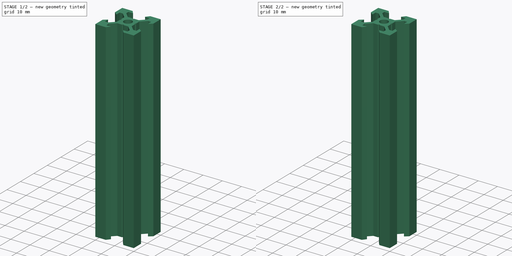
[diagram: build sequence overview — one tinted view per stage of 2, left to right]
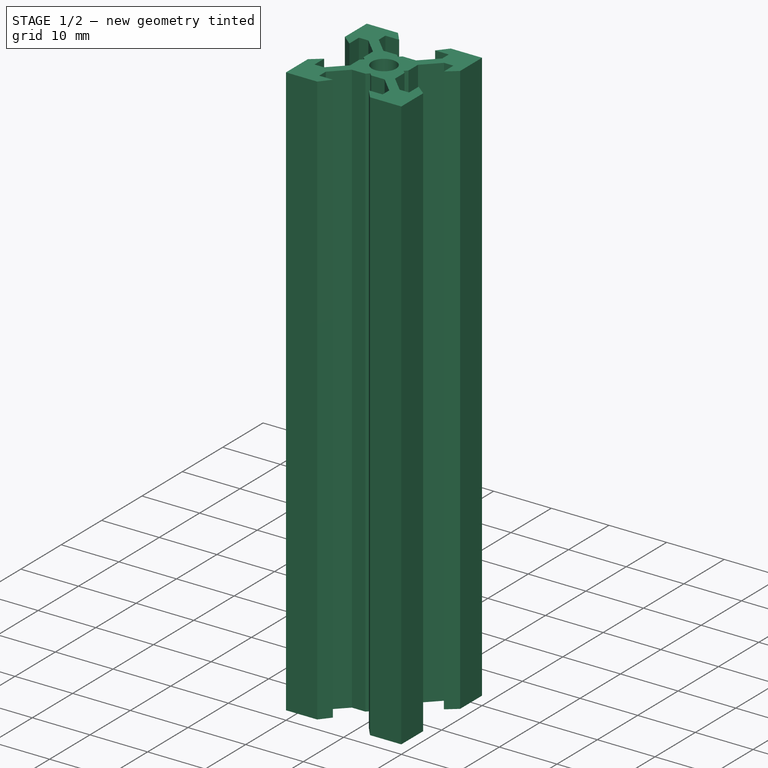
[diagram: stage 1 of 2 — iso view after this stage's code; geometry added in this stage tinted green]
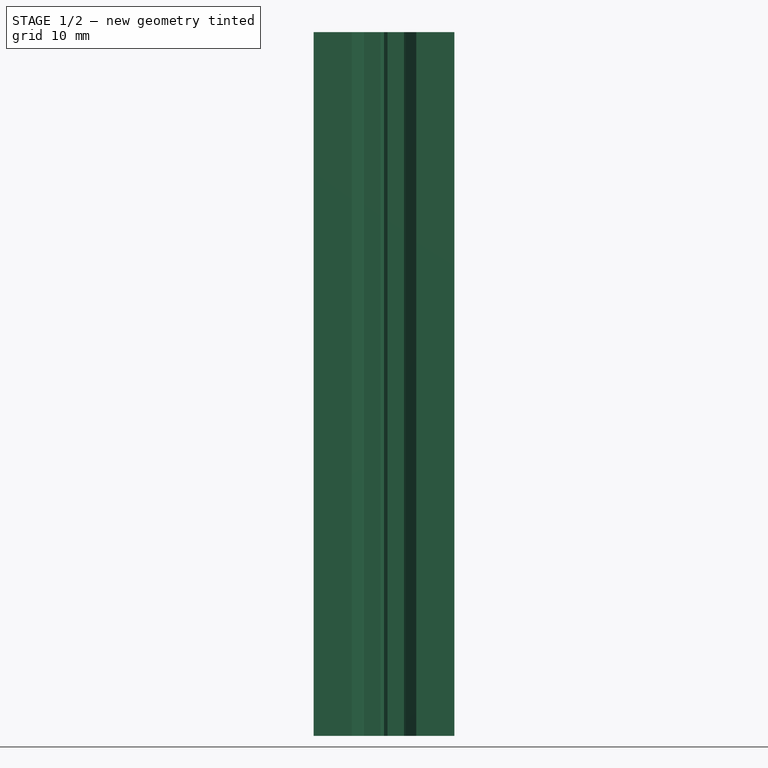
[diagram: stage 1 of 2 — front view after this stage's code; geometry added in this stage tinted green]
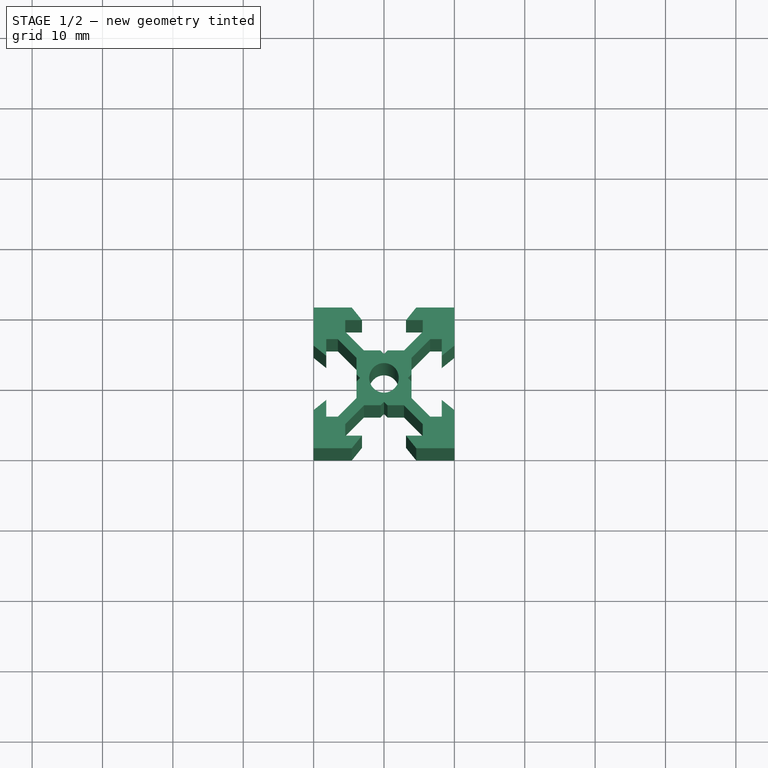
[diagram: stage 1 of 2 — top view after this stage's code; geometry added in this stage tinted green]
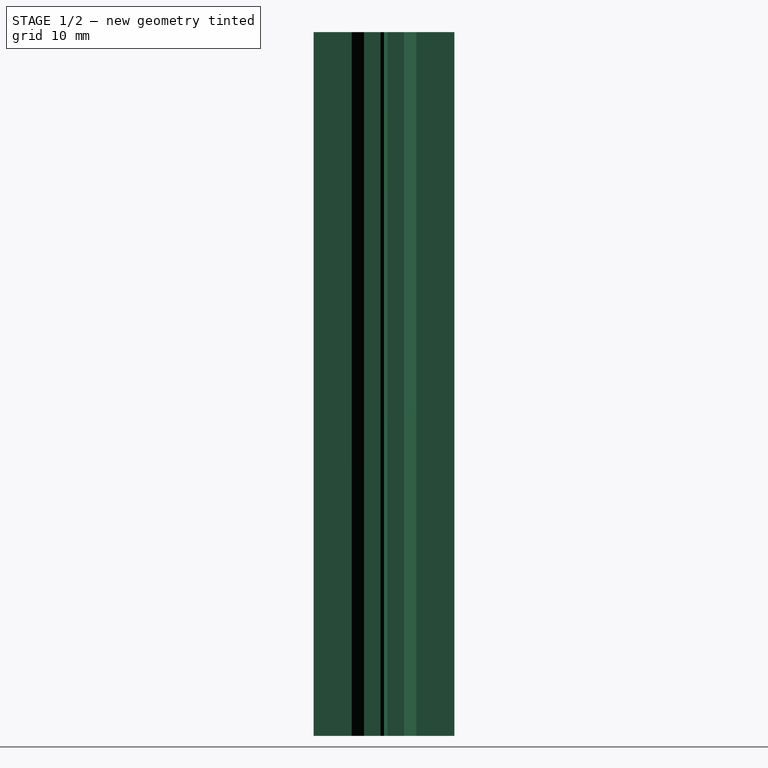
[diagram: stage 1 of 2 — right view after this stage's code; geometry added in this stage tinted green]
FCSTD DOCUMENT  (FreeCAD 0.19R22960 (Git))
Label: profileVSlot
License: All rights reserved
LicenseURL: http://en.wikipedia.org/wiki/All_rights_reserved
objects: Sketcher::SketchObject×1, PartDesign::Pad×1, PartDesign::PolarPattern×1, PartDesign::Body×1, Spreadsheet::Sheet×1, Part::FeaturePython×1
note: 5 computed .brp shape members not serialized (recipe doc carries the construction recipe); baked Part::Feature solids carry a one-line shape summary decoded from their .brp

FEATURE [Sketcher::SketchObject] Sketch
  MapMode = 5
  Support = -> [XY_Plane]
  sketch-geometry (17):
    g0: LineSegment StartX=-4.58 StartY=10 StartZ=0 EndX=-10 EndY=10 EndZ=0
    g1: LineSegment StartX=-10 StartY=10 StartZ=0 EndX=-10 EndY=4.58 EndZ=0
    g2: LineSegment StartX=-4.58 StartY=10 StartZ=0 EndX=-3.125 EndY=8.2 EndZ=0
    g3: LineSegment StartX=-3.125 StartY=8.2 StartZ=0 EndX=-5.5 EndY=8.2 EndZ=0
    g4: LineSegment StartX=-5.5 StartY=8.2 StartZ=0 EndX=-5.5 EndY=6.56 EndZ=0
    g5: LineSegment StartX=-5.5 StartY=6.56 StartZ=0 EndX=-2.84 EndY=3.90066 EndZ=0
    g6: LineSegment StartX=-2.84 StartY=3.90066 StartZ=0 EndX=-0.5 EndY=3.90066 EndZ=0
    g7: LineSegment StartX=-0.5 StartY=3.90066 StartZ=0 EndX=0 EndY=3.40066 EndZ=0
    g8: LineSegment StartX=-3.40066 StartY=0 StartZ=0 EndX=-3.90066 EndY=0.5 EndZ=0
    g9: LineSegment StartX=-3.90066 StartY=0.5 StartZ=0 EndX=-3.90066 EndY=2.84 EndZ=0
    g10: LineSegment StartX=-3.90066 StartY=2.84 StartZ=0 EndX=-6.56 EndY=5.5 EndZ=0
    g11: LineSegment StartX=-6.56 StartY=5.5 StartZ=0 EndX=-8.2 EndY=5.5 EndZ=0
    g12: LineSegment StartX=-8.2 StartY=5.5 StartZ=0 EndX=-8.2 EndY=3.125 EndZ=0
    g13: LineSegment StartX=-8.2 StartY=3.125 StartZ=0 EndX=-10 EndY=4.58 EndZ=0
    g14: ArcOfCircle CenterX=0 CenterY=0 CenterZ=0 NormalX=0 NormalY=0 NormalZ=1 AngleXU=0 Radius=2.1 StartAngle=1.5708 EndAngle=3.14159
    g15: LineSegment StartX=-3.40066 StartY=0 StartZ=0 EndX=-2.1 EndY=3e-16 EndZ=0
    g16: LineSegment StartX=1e-16 StartY=2.1 StartZ=0 EndX=0 EndY=3.40066 EndZ=0
  constraints (51):
    c: Horizontal(g0)
    c: Coincident(g0,g1)
    c: Vertical(g1)
    c: Equal(g1,g0)
    c: DistanceY(g-1,g0) = 10
    c: Coincident(g0,g2)
    c: Coincident(g2,g3)
    c: Horizontal(g3)
    c: Coincident(g3,g4)
    c: Vertical(g4)
    c: Coincident(g4,g5)
    c: Coincident(g5,g6)
    c: Horizontal(g6)
    c: Coincident(g6,g7)
    c: PointOnObject(g7,g-2)
    c: PointOnObject(g8,g-1)
    c: Coincident(g8,g9)
    c: Vertical(g9)
    c: Coincident(g9,g10)
    c: Coincident(g10,g11)
    c: Coincident(g11,g12)
    c: Coincident(g12,g13)
    c: Coincident(g13,g1)
    c: Horizontal(g11)
    c: DistanceX(g0,g-1) = 10
    c: DistanceX(g2,g-1) = 3.125
    c: DistanceY(g-1,g12) = 3.125
    c: DistanceX(g0,g-1) = 4.58
    c: Vertical(g12)
    c: DistanceX(g3,g-1) = 5.5
    c: DistanceY(g-1,g11) = 5.5
    c: Equal(g4,g11)
    c: DistanceY(g4,g4) = 1.64
    c: Equal(g8,g7)
    c: DistanceY(g-1,g8) = 0.5
    c: DistanceY(g-1,g9) = 2.84
    c: DistanceX(g5,g-1) = 2.84
    c: DistanceY(g3,g0) = 1.8
    c: DistanceX(g1,g11) = 1.8
    c: Distance(g9,g5) = 1.5
    c: Coincident(g14,g-1)
    c: PointOnObject(g14,g-1)
    c: PointOnObject(g14,g-2)
    c: Radius(g14) = 2.1
    c: Coincident(g15,g8)
    c: Coincident(g15,g14)
    c: Coincident(g16,g14)
    c: Coincident(g16,g7)
    c: Equal(g16,g15)
    c: Angle(g7,g16) = 2.35619
    c: Angle(g15,g8) = 2.35619
FEATURE [PartDesign::Pad] Pad
  Direction = (1,1,1)
  Length = 100
  Length2 = 100
  Midplane = true
  Profile = -> Sketch
  Type = 0
  expr: Length = Spreadsheet.B1
FEATURE [PartDesign::PolarPattern] PolarPattern
  Angle = 360
  Axis = -> Sketch [N_Axis]
  BaseFeature = -> Pad
  Occurrences = 4
  Originals = -> [Pad]
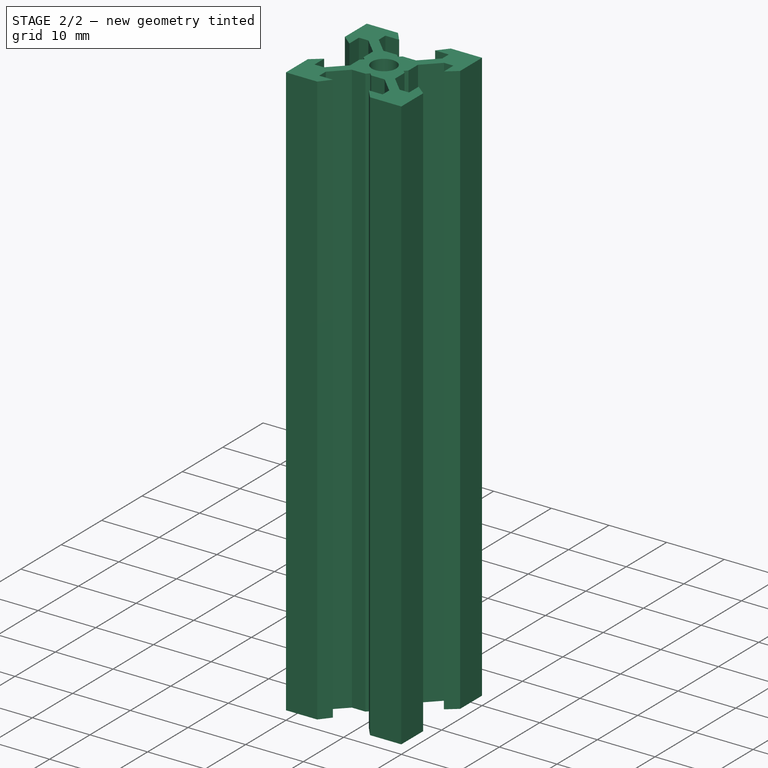
[diagram: stage 2 of 2 — iso view after this stage's code; geometry added in this stage tinted green]
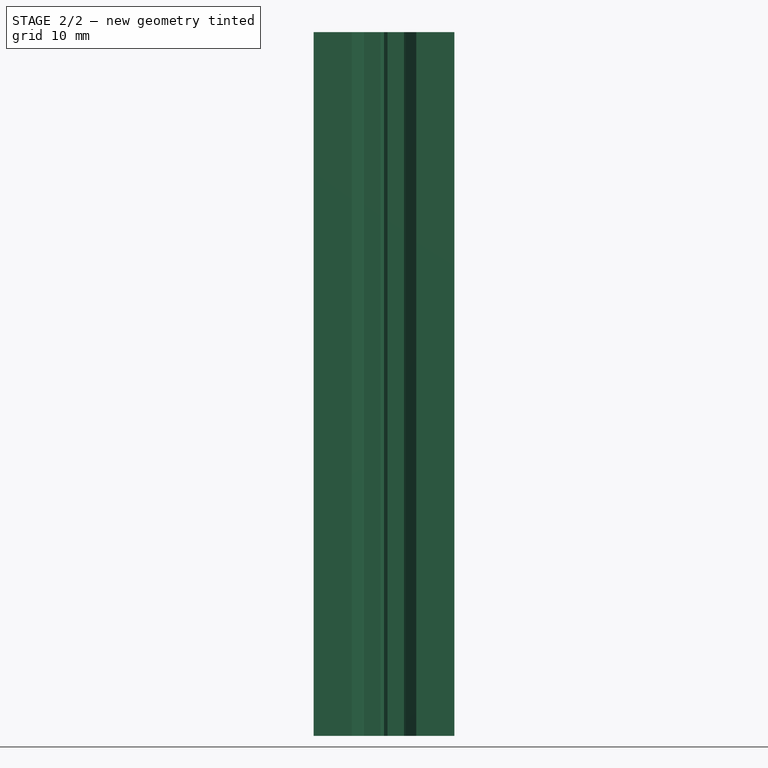
[diagram: stage 2 of 2 — front view after this stage's code; geometry added in this stage tinted green]
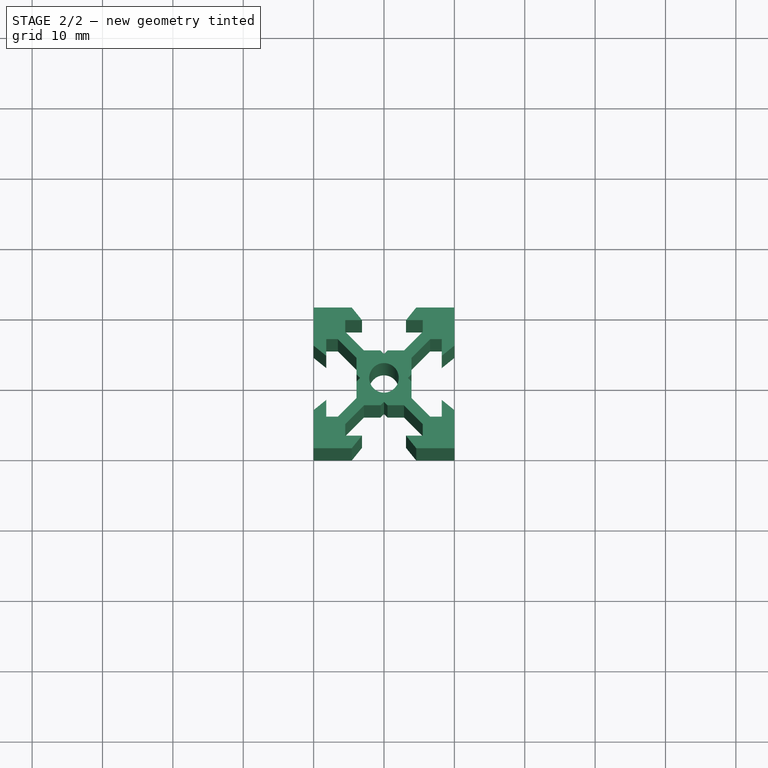
[diagram: stage 2 of 2 — top view after this stage's code; geometry added in this stage tinted green]
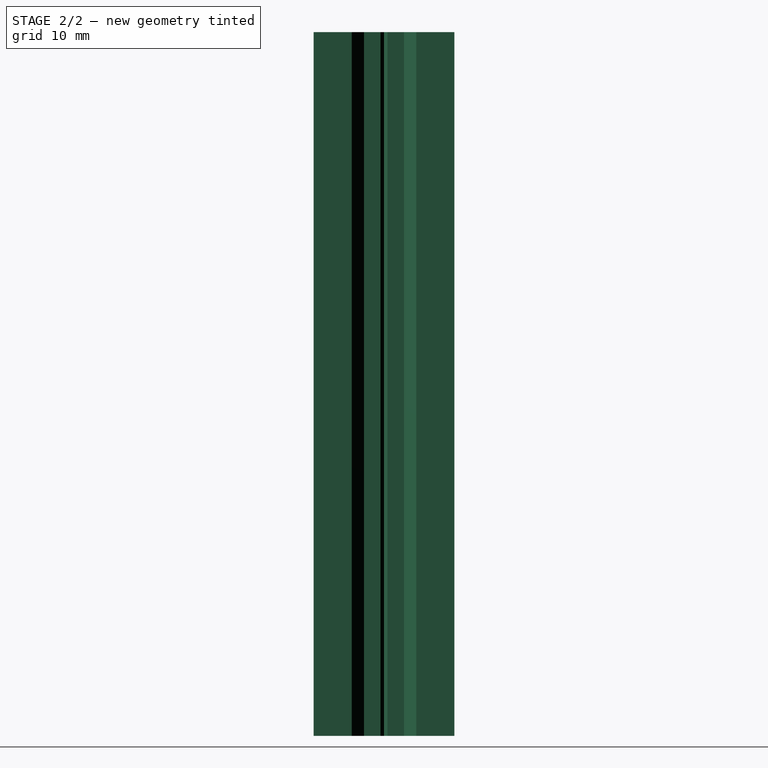
[diagram: stage 2 of 2 — right view after this stage's code; geometry added in this stage tinted green]
FEATURE [PartDesign::Body] Body  label="profil_gora"
  Group = -> [Sketch,Pad,PolarPattern]
  Origin = -> Origin
  Tip = -> PolarPattern
FEATURE [Spreadsheet::Sheet] Spreadsheet
  cells = A1=Length; B1=100; C1=mm; A2=Rows; B2=1
FEATURE [Part::FeaturePython] Array  label="profile_v_slot_export"  # Draft array (typed FeaturePython)
  Angle = 360
  ArrayType = 0
  Axis = (0,0,1)
  Base = -> PolarPattern
  Center = (0,0,0)
  Count = 1
  ExpandArray = false
  Fuse = false
  IntervalAxis = (0,0,0)
  IntervalX = (100,0,0)
  IntervalY = (0,20,0)
  IntervalZ = (0,0,100)
  NumberCircles = 3
  NumberPolar = 5
  NumberX = 1
  NumberY = 1
  NumberZ = 1
  PlacementList = 1 placements: [(0,0,0)]
  RadialDistance = 50
  ScaleList = (1) [(1,1,1)]
  Symmetry = 1
  TangentialDistance = 25
  expr: NumberY = Spreadsheet.B2
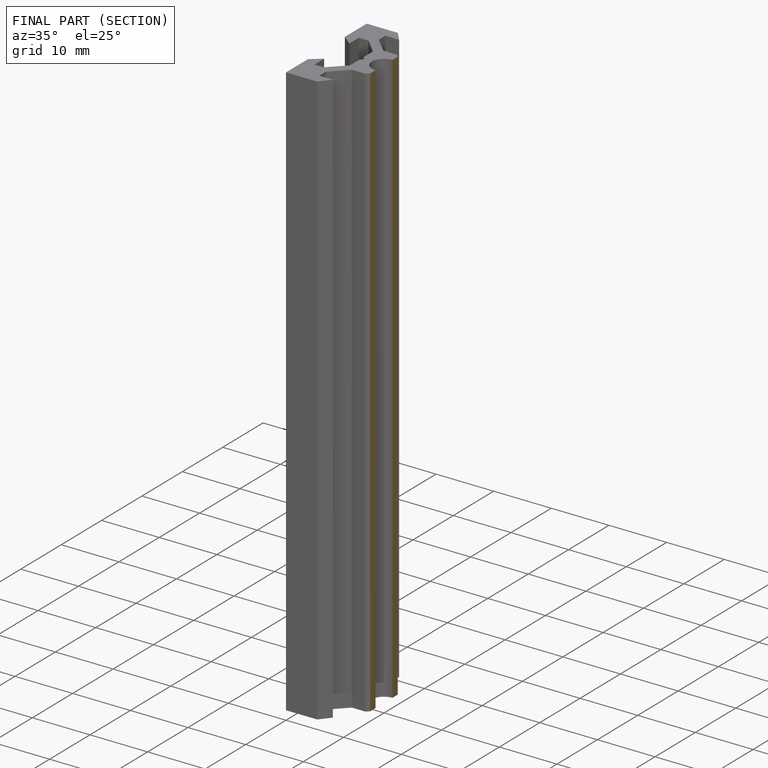
[diagram: finished part — half-section view (interior)]
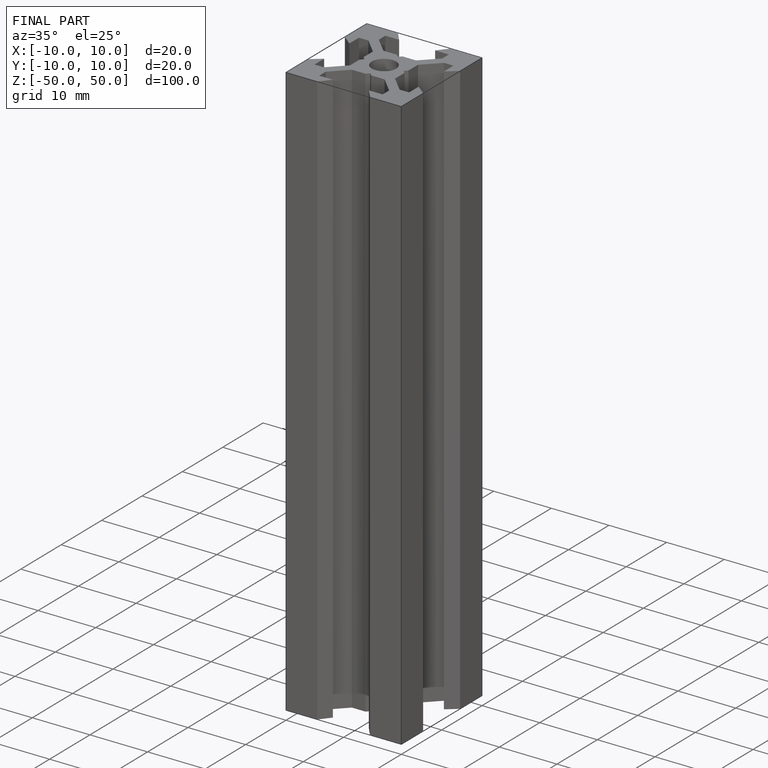
[diagram: finished part — iso view with bounding-box wireframe]
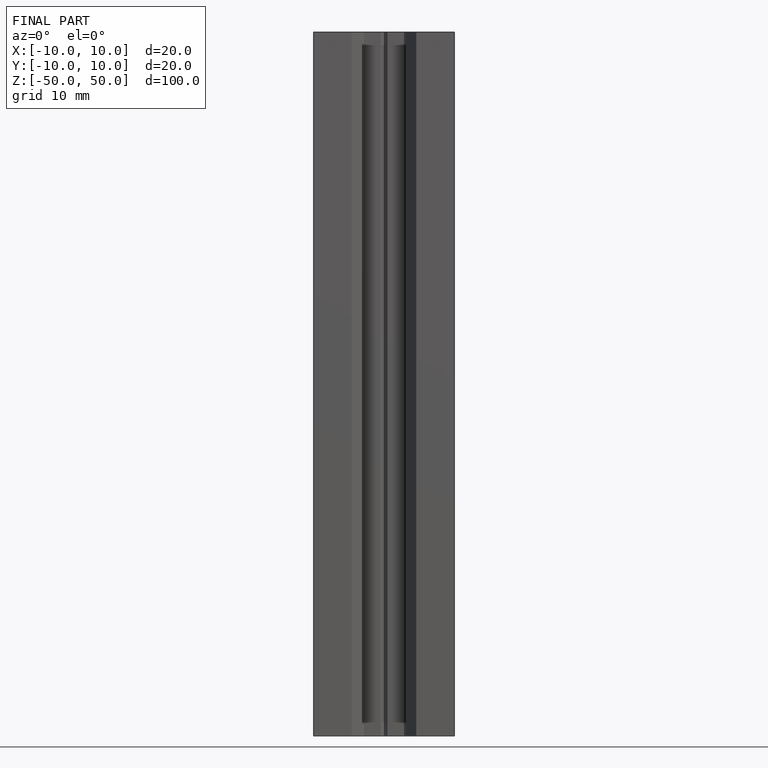
[diagram: finished part — front view with bounding-box wireframe]
